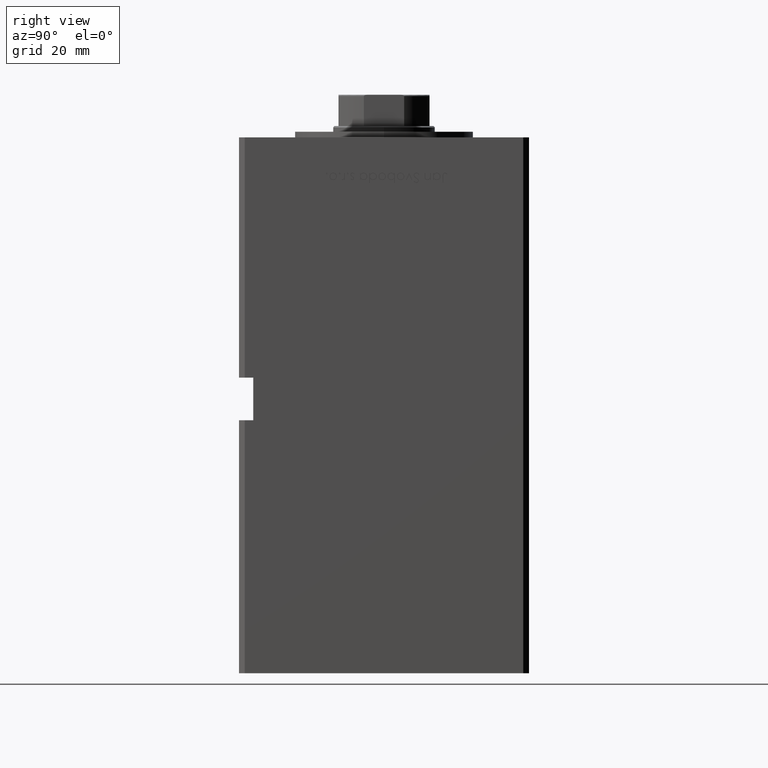
[diagram: clean part render]
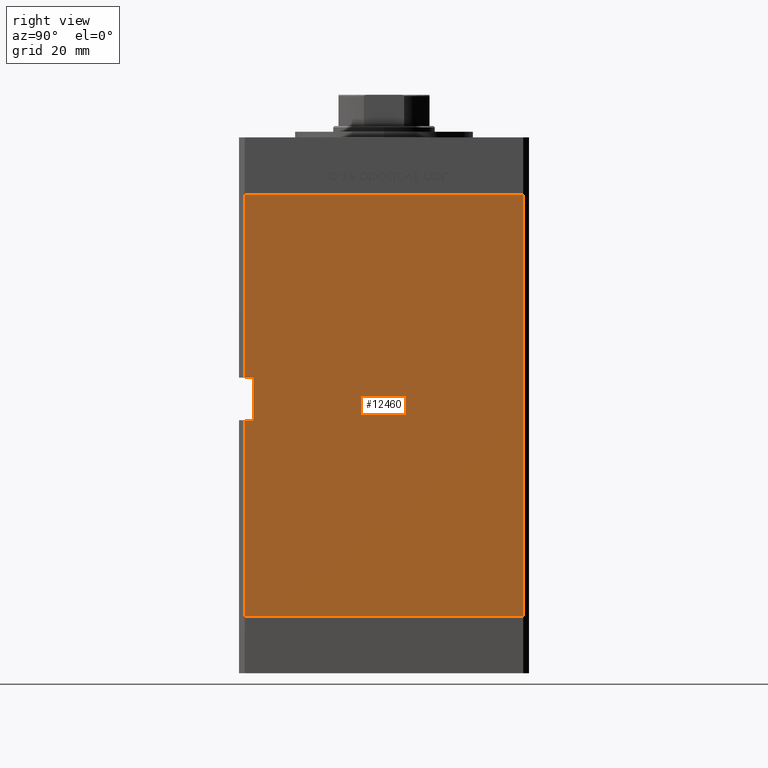
[diagram: same view with one face highlighted and labeled with its STEP entity id]
A machine part, right view. The second image highlights one B-rep face of the part: STEP entity #12460.
In plain terms, the highlighted planar face has unit normal (1, -0, 0).
Its self-contained STEP definition (entity closure, byte-faithful):
#151 = CARTESIAN_POINT ( 'NONE',  ( 60.00000000000001421, 49.00000000000000000, 148.5000000000000000 ) ) ;
#373 = VERTEX_POINT ( 'NONE', #17495 ) ;
#551 = CARTESIAN_POINT ( 'NONE',  ( 59.99999999999998579, -48.99999999999998579, 0.000000000000000000 ) ) ;
#1044 = EDGE_CURVE ( 'NONE', #31384, #10682, #48453, .T. ) ;
#3595 = CARTESIAN_POINT ( 'NONE',  ( 59.99999999999998579, -48.99999999999998579, 83.99999999999998579 ) ) ;
#5119 = DIRECTION ( 'NONE',  ( -0.000000000000000000, -1.000000000000000000, -0.000000000000000000 ) ) ;
#8969 = DIRECTION ( 'NONE',  ( -2.832201593431522219E-16, -1.000000000000000000, 0.000000000000000000 ) ) ;
#9382 = LINE ( 'NONE', #42120, #38932 ) ;
#9699 = VECTOR ( 'NONE', #40480, 1000.000000000000000 ) ;
#10682 = VERTEX_POINT ( 'NONE', #52727 ) ;
#11232 = LINE ( 'NONE', #39682, #9699 ) ;
#11329 = EDGE_CURVE ( 'NONE', #31384, #45046, #11232, .T. ) ;
#12460 = ADVANCED_FACE ( 'NONE', ( #19760 ), #12516, .T. ) ;
#12516 = PLANE ( 'NONE',  #45743 ) ;
#13412 = EDGE_CURVE ( 'NONE', #373, #30455, #9382, .T. ) ;
#16021 = VECTOR ( 'NONE', #45301, 1000.000000000000000 ) ;
#17495 = CARTESIAN_POINT ( 'NONE',  ( 60.00000000000001421, 49.00000000000000000, 148.5000000000000000 ) ) ;
#18978 = LINE ( 'NONE', #35342, #49721 ) ;
#19219 = CARTESIAN_POINT ( 'NONE',  ( 60.00000000000001421, 49.00000000000000000, 0.000000000000000000 ) ) ;
#19760 = FACE_OUTER_BOUND ( 'NONE', #21431, .T. ) ;
#20200 = ORIENTED_EDGE ( 'NONE', *, *, #13412, .F. ) ;
#20624 = VERTEX_POINT ( 'NONE', #37165 ) ;
#20646 = EDGE_CURVE ( 'NONE', #373, #20624, #33130, .T. ) ;
#21147 = LINE ( 'NONE', #28944, #16021 ) ;
#21431 = EDGE_LOOP ( 'NONE', ( #33140, #52139, #26310, #20200, #28509, #28559, #37617, #42525 ) ) ;
#22014 = CARTESIAN_POINT ( 'NONE',  ( 59.99999999999998579, -45.99999999999999289, 83.99999999999998579 ) ) ;
#24039 = DIRECTION ( 'NONE',  ( -0.000000000000000000, -1.000000000000000000, -0.000000000000000000 ) ) ;
#25498 = CARTESIAN_POINT ( 'NONE',  ( 59.99999999999998579, -45.99999999999999289, 83.99999999999998579 ) ) ;
#25758 = DIRECTION ( 'NONE',  ( -0.000000000000000000, -0.000000000000000000, -1.000000000000000000 ) ) ;
#26236 = EDGE_CURVE ( 'NONE', #20624, #29348, #18978, .T. ) ;
#26310 = ORIENTED_EDGE ( 'NONE', *, *, #31317, .F. ) ;
#28335 = CARTESIAN_POINT ( 'NONE',  ( 59.99999999999998579, -46.00000000000000000, 68.99999999999998579 ) ) ;
#28509 = ORIENTED_EDGE ( 'NONE', *, *, #20646, .T. ) ;
#28559 = ORIENTED_EDGE ( 'NONE', *, *, #26236, .T. ) ;
#28612 = DIRECTION ( 'NONE',  ( 1.000000000000000000, -2.832201593431522219E-16, 0.000000000000000000 ) ) ;
#28875 = DIRECTION ( 'NONE',  ( 2.832201593431522219E-16, 1.000000000000000000, 0.000000000000000000 ) ) ;
#28944 = CARTESIAN_POINT ( 'NONE',  ( 59.99999999999998579, -48.99999999999998579, 148.5000000000000000 ) ) ;
#29099 = CARTESIAN_POINT ( 'NONE',  ( 60.00000000000001421, 49.00000000000000000, 148.5000000000000000 ) ) ;
#29348 = VERTEX_POINT ( 'NONE', #3595 ) ;
#30455 = VERTEX_POINT ( 'NONE', #33347 ) ;
#31317 = EDGE_CURVE ( 'NONE', #30455, #50587, #39611, .T. ) ;
#31384 = VERTEX_POINT ( 'NONE', #28335 ) ;
#33130 = LINE ( 'NONE', #29099, #46093 ) ;
#33140 = ORIENTED_EDGE ( 'NONE', *, *, #1044, .T. ) ;
#33347 = CARTESIAN_POINT ( 'NONE',  ( 60.00000000000001421, 49.00000000000000000, 0.000000000000000000 ) ) ;
#34405 = VECTOR ( 'NONE', #35587, 1000.000000000000000 ) ;
#35342 = CARTESIAN_POINT ( 'NONE',  ( 59.99999999999998579, -48.99999999999998579, 148.5000000000000000 ) ) ;
#35391 = EDGE_CURVE ( 'NONE', #45046, #29348, #42934, .T. ) ;
#35587 = DIRECTION ( 'NONE',  ( -2.832201593431522219E-16, -1.000000000000000000, 0.000000000000000000 ) ) ;
#37165 = CARTESIAN_POINT ( 'NONE',  ( 59.99999999999998579, -48.99999999999998579, 148.5000000000000000 ) ) ;
#37617 = ORIENTED_EDGE ( 'NONE', *, *, #35391, .F. ) ;
#38668 = VECTOR ( 'NONE', #24039, 1000.000000000000000 ) ;
#38932 = VECTOR ( 'NONE', #25758, 1000.000000000000000 ) ;
#39341 = CARTESIAN_POINT ( 'NONE',  ( 59.99999999999998579, -45.99999999999999289, 68.99999999999998579 ) ) ;
#39611 = LINE ( 'NONE', #19219, #34405 ) ;
#39682 = CARTESIAN_POINT ( 'NONE',  ( 59.99999999999998579, -45.99999999999999289, 83.99999999999998579 ) ) ;
#40432 = VECTOR ( 'NONE', #5119, 1000.000000000000000 ) ;
#40480 = DIRECTION ( 'NONE',  ( -0.000000000000000000, -0.000000000000000000, 1.000000000000000000 ) ) ;
#42120 = CARTESIAN_POINT ( 'NONE',  ( 60.00000000000001421, 49.00000000000000000, 148.5000000000000000 ) ) ;
#42525 = ORIENTED_EDGE ( 'NONE', *, *, #11329, .F. ) ;
#42934 = LINE ( 'NONE', #22014, #40432 ) ;
#45046 = VERTEX_POINT ( 'NONE', #25498 ) ;
#45301 = DIRECTION ( 'NONE',  ( -0.000000000000000000, -0.000000000000000000, -1.000000000000000000 ) ) ;
#45743 = AXIS2_PLACEMENT_3D ( 'NONE', #151, #28612, #28875 ) ;
#46093 = VECTOR ( 'NONE', #8969, 1000.000000000000000 ) ;
#47684 = DIRECTION ( 'NONE',  ( -0.000000000000000000, -0.000000000000000000, -1.000000000000000000 ) ) ;
#48453 = LINE ( 'NONE', #39341, #38668 ) ;
#49721 = VECTOR ( 'NONE', #47684, 1000.000000000000000 ) ;
#50587 = VERTEX_POINT ( 'NONE', #551 ) ;
#50870 = EDGE_CURVE ( 'NONE', #10682, #50587, #21147, .T. ) ;
#52139 = ORIENTED_EDGE ( 'NONE', *, *, #50870, .T. ) ;
#52727 = CARTESIAN_POINT ( 'NONE',  ( 59.99999999999998579, -48.99999999999998579, 68.99999999999998579 ) ) ;